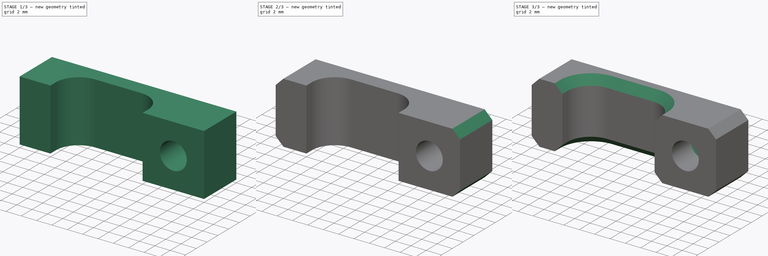
[diagram: build sequence overview — one tinted view per stage of 3, left to right]
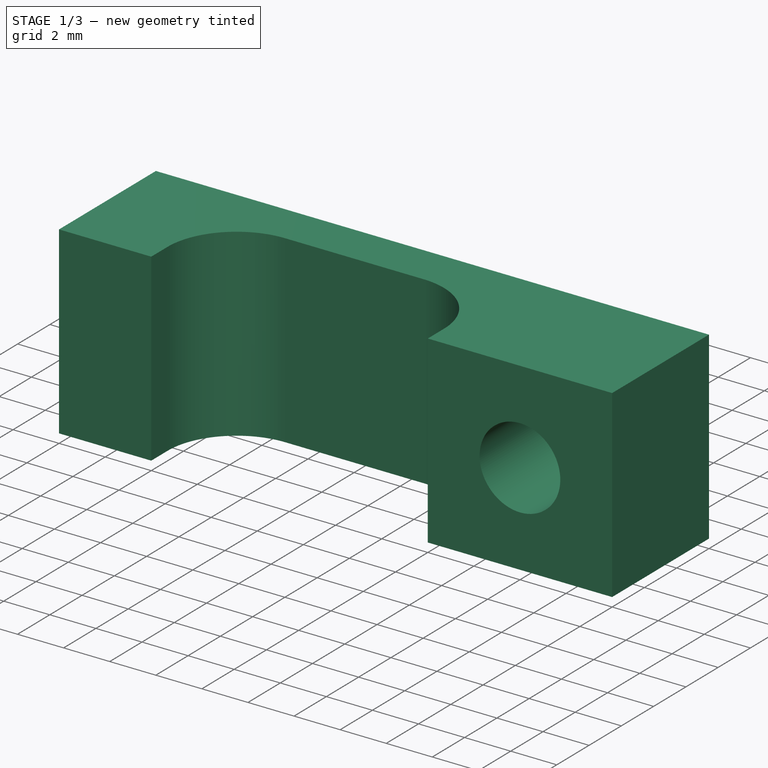
[diagram: stage 1 of 3 — iso view after this stage's code; geometry added in this stage tinted green]
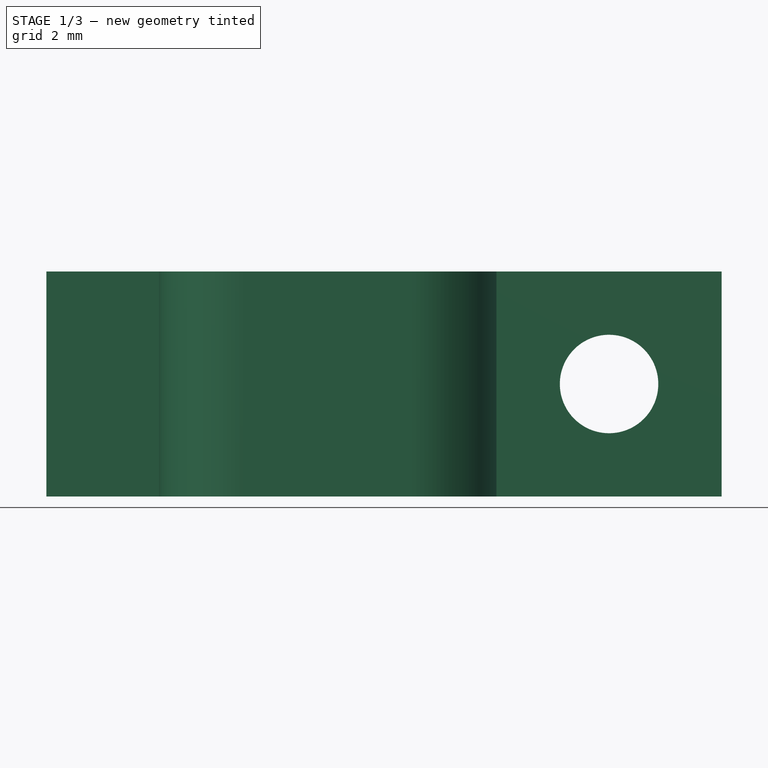
[diagram: stage 1 of 3 — front view after this stage's code; geometry added in this stage tinted green]
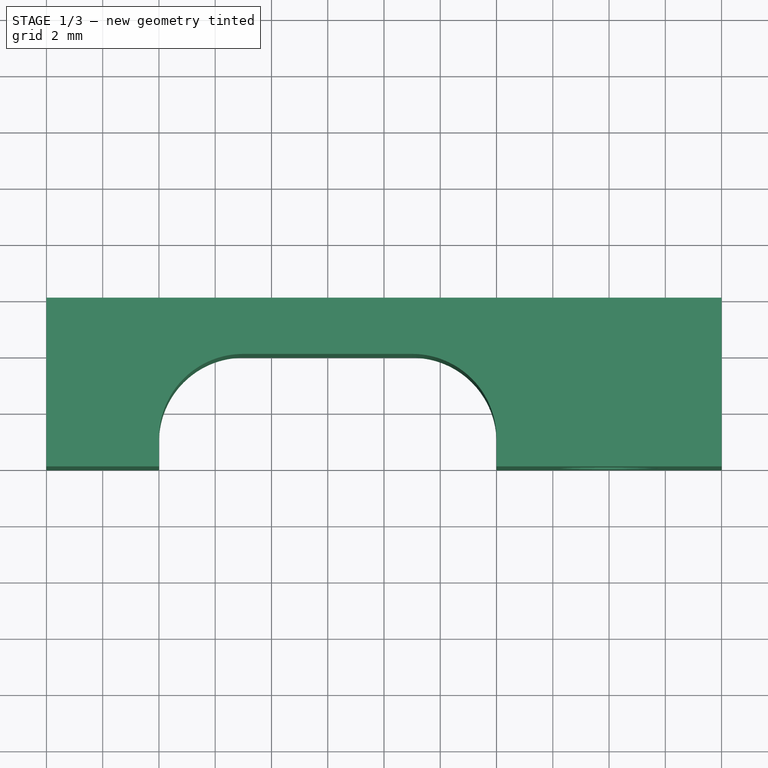
[diagram: stage 1 of 3 — top view after this stage's code; geometry added in this stage tinted green]
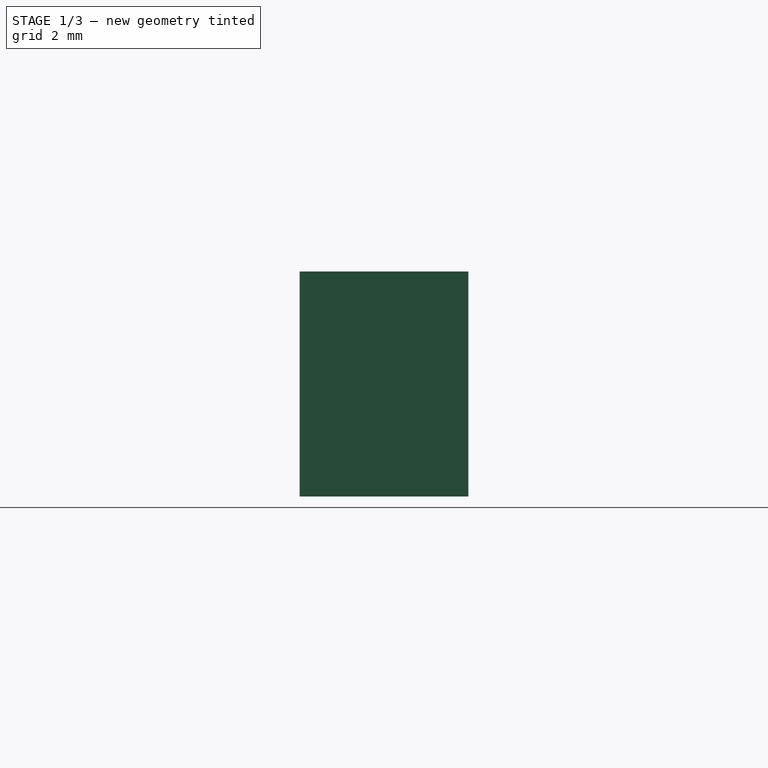
[diagram: stage 1 of 3 — right view after this stage's code; geometry added in this stage tinted green]
FCSTD DOCUMENT  (FreeCAD 0.19R24276 (Git))
Label: peek-cable-clamp
License: All rights reserved
LicenseURL: http://en.wikipedia.org/wiki/All_rights_reserved
objects: Sketcher::SketchObject×3, PartDesign::Pocket×2, PartDesign::Chamfer×2, PartDesign::Plane×2, PartDesign::Pad×1, PartDesign::Body×1
note: 16 computed .brp shape members not serialized (recipe doc carries the construction recipe); baked Part::Feature solids carry a one-line shape summary decoded from their .brp

FEATURE [Sketcher::SketchObject] Sketch
  FullyConstrained = true
  MapMode = 5
  Support = -> [XY_Plane]
  sketch-geometry (14):
    g0: LineSegment StartX=-16 StartY=0 StartZ=0 EndX=-20 EndY=0 EndZ=0
    g1: LineSegment StartX=-20 StartY=0 StartZ=0 EndX=-20 EndY=6 EndZ=0
    g2: LineSegment StartX=-20 StartY=6 StartZ=0 EndX=4 EndY=6 EndZ=0
    g3: LineSegment StartX=4 StartY=6 StartZ=0 EndX=4 EndY=0 EndZ=0
    g4: LineSegment StartX=-4 StartY=0 StartZ=0 EndX=4 EndY=0 EndZ=0
    g5: LineSegment StartX=-16 StartY=0 StartZ=0 EndX=-16 EndY=6 EndZ=0
    g6: LineSegment StartX=-4 StartY=0 StartZ=0 EndX=-4 EndY=6 EndZ=0
    g7: LineSegment StartX=-16 StartY=0 StartZ=0 EndX=-16 EndY=1 EndZ=0
    g8: LineSegment StartX=-4 StartY=0 StartZ=0 EndX=-4 EndY=1 EndZ=0
    g9: LineSegment StartX=-13 StartY=4 StartZ=0 EndX=-7 EndY=4 EndZ=0
    g10: ArcOfCircle CenterX=-13 CenterY=1 CenterZ=0 NormalX=0 NormalY=0 NormalZ=1 AngleXU=0 Radius=3 StartAngle=1.5708 EndAngle=3.14159
    g11: GeomPoint X=-16 Y=4 Z=0
    g12: ArcOfCircle CenterX=-7 CenterY=1 CenterZ=0 NormalX=0 NormalY=0 NormalZ=1 AngleXU=0 Radius=3 StartAngle=0 EndAngle=1.5708
    g13: GeomPoint X=-4 Y=4 Z=0
  constraints (38):
    c: PointOnObject(g4,g-1)
    c: PointOnObject(g0,g-1)
    c: Coincident(g0,g1)
    c: Vertical(g1)
    c: Coincident(g1,g2)
    c: Coincident(g2,g3)
    c: Vertical(g3)
    c: Horizontal(g0)
    c: DistanceY(g1,g1) = 6
    c: Coincident(g3,g4)
    c: Horizontal(g2)
    c: Symmetric(g4,g3,g-2)
    c: DistanceX(g4,g4) = 8
    c: DistanceX(g1,g-1) = 20
    c: DistanceX(g0,g4) = 12
    c: DistanceX(g0,g0) = 4
    c: PointOnObject(g5,g2)
    c: Vertical(g5)
    c: Coincident(g6,g4)
    c: PointOnObject(g6,g2)
    c: Vertical(g6)
    c: Coincident(g5,g0) = 1.5708
    c: Coincident(g7,g0)
    c: PointOnObject(g11,g5)
    c: Coincident(g8,g4)
    c: PointOnObject(g13,g6)
    c: Vertical(g8)
    c: DistanceY(g7,g11) = 4
    c: Horizontal(g11,g13)
    c: PointOnObject(g11,g7)
    c: PointOnObject(g11,g9)
    c: Tangent(g7,g10) = 1.5708
    c: Tangent(g9,g10) = 1.5708
    c: PointOnObject(g13,g9)
    c: Tangent(g9,g12) = 1.5708
    c: Tangent(g8,g12) = -1.5708
    c: Equal(g10,g12)
    c: Radius(g10) = 3
FEATURE [PartDesign::Pad] Pad  label="Base Feature"
  AllowMultiFace = false
  Direction = (1,1,1)
  Length = 4
  Length2 = 4
  Profile = -> Sketch
  Type = 4
FEATURE [Sketcher::SketchObject] Sketch001
  FullyConstrained = true
  MapMode = 5
  Placement = pos=(0,0,0) rot=(1,0,0;1.5708rad)
  Support = -> [XZ_Plane]
  sketch-geometry (1):
    g0: Circle CenterX=0 CenterY=0 CenterZ=0 NormalX=0 NormalY=0 NormalZ=1 AngleXU=0 Radius=1.75
  constraints (2):
    c: Coincident(g0,g-1)
    c: Diameter(g0) = 3.5
FEATURE [PartDesign::Pocket] Pocket  label="M3 Through Hole"
  AllowMultiFace = false
  BaseFeature = -> Pad
  Length = 5
  Length2 = 100
  Profile = -> Sketch001
  Type = 1
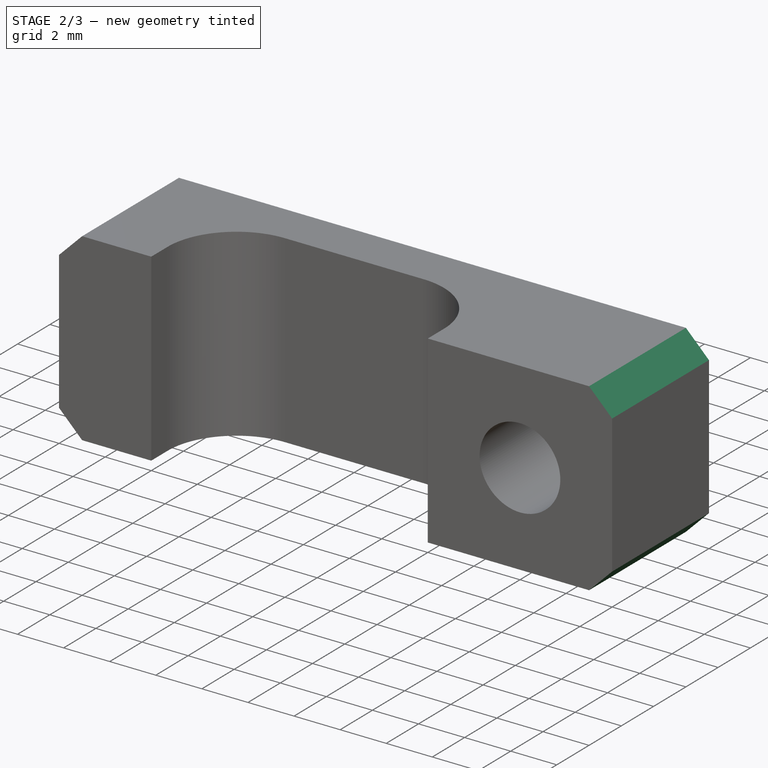
[diagram: stage 2 of 3 — iso view after this stage's code; geometry added in this stage tinted green]
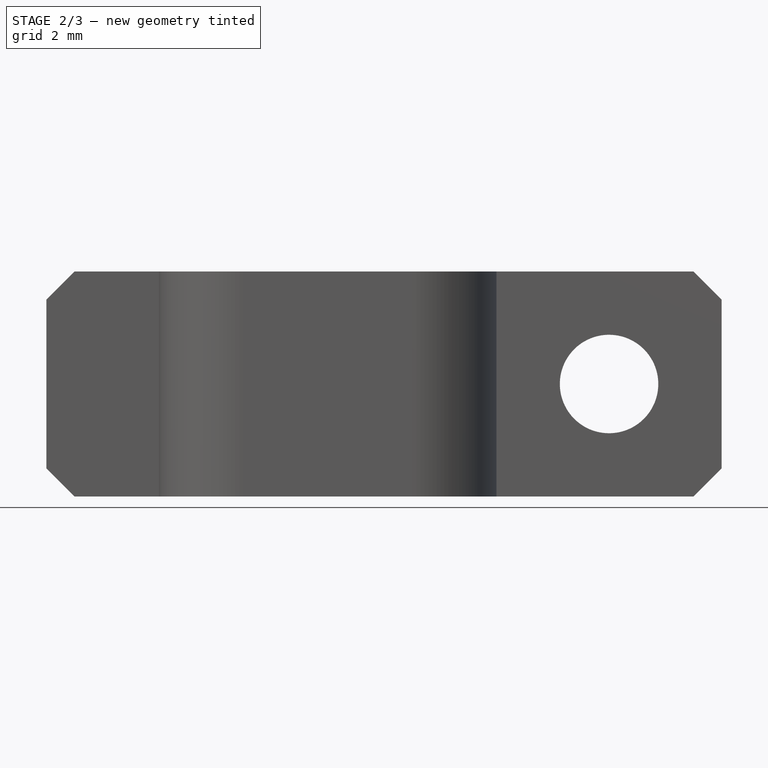
[diagram: stage 2 of 3 — front view after this stage's code; geometry added in this stage tinted green]
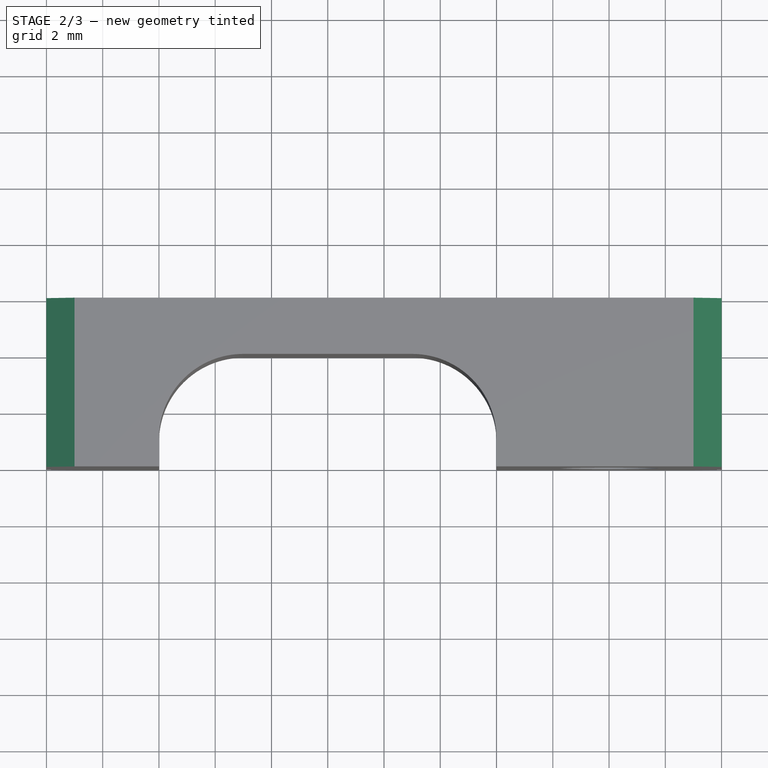
[diagram: stage 2 of 3 — top view after this stage's code; geometry added in this stage tinted green]
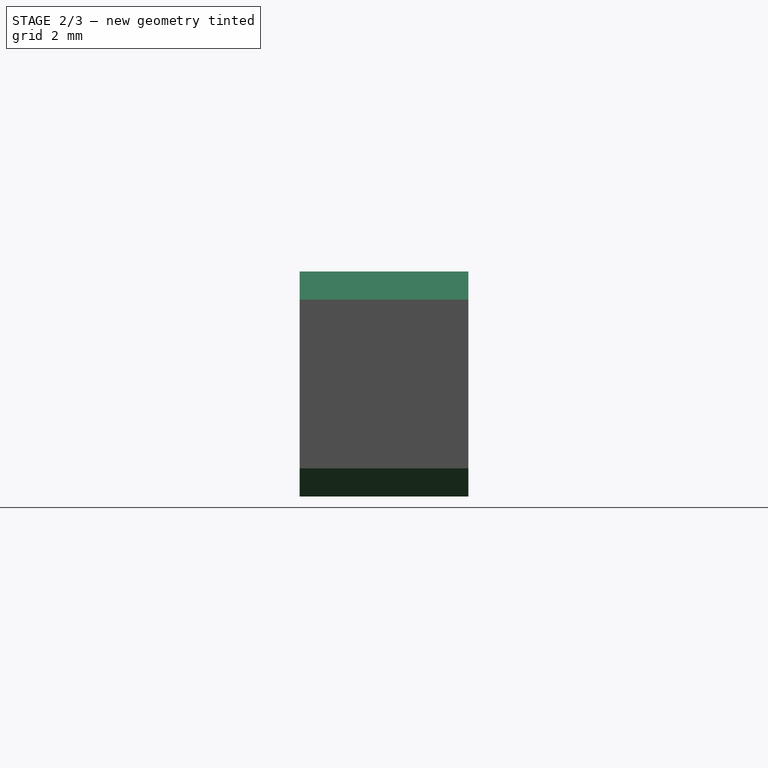
[diagram: stage 2 of 3 — right view after this stage's code; geometry added in this stage tinted green]
FEATURE [PartDesign::Chamfer] Chamfer
  Angle = 45
  Base = -> Pocket [Edge19,Edge21,Edge14,Edge12]
  BaseFeature = -> Pocket
  ChamferType = 0
  FlipDirection = false
  Size = 1
  Size2 = 1
  SupportTransform = false
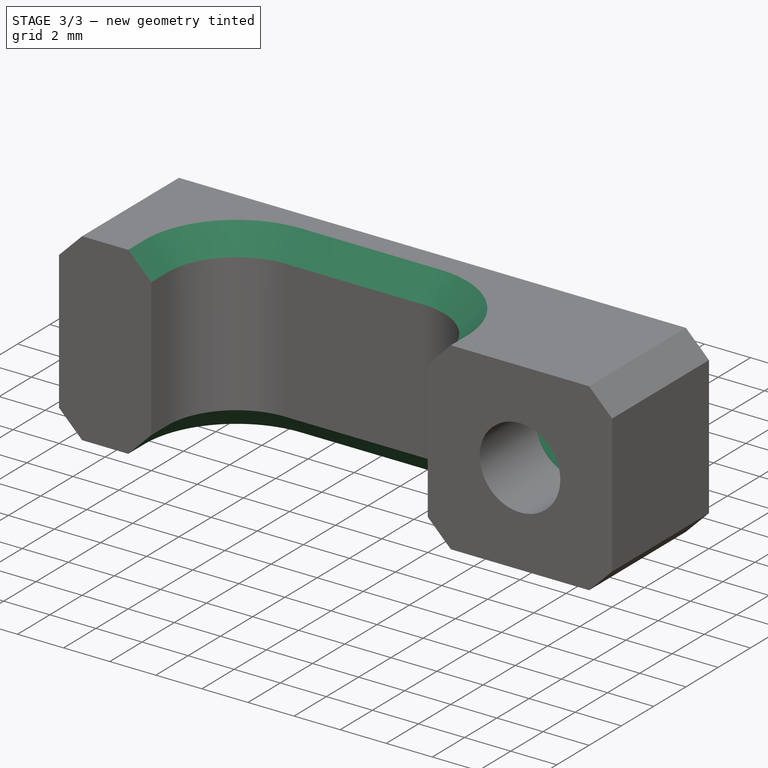
[diagram: stage 3 of 3 — iso view after this stage's code; geometry added in this stage tinted green]
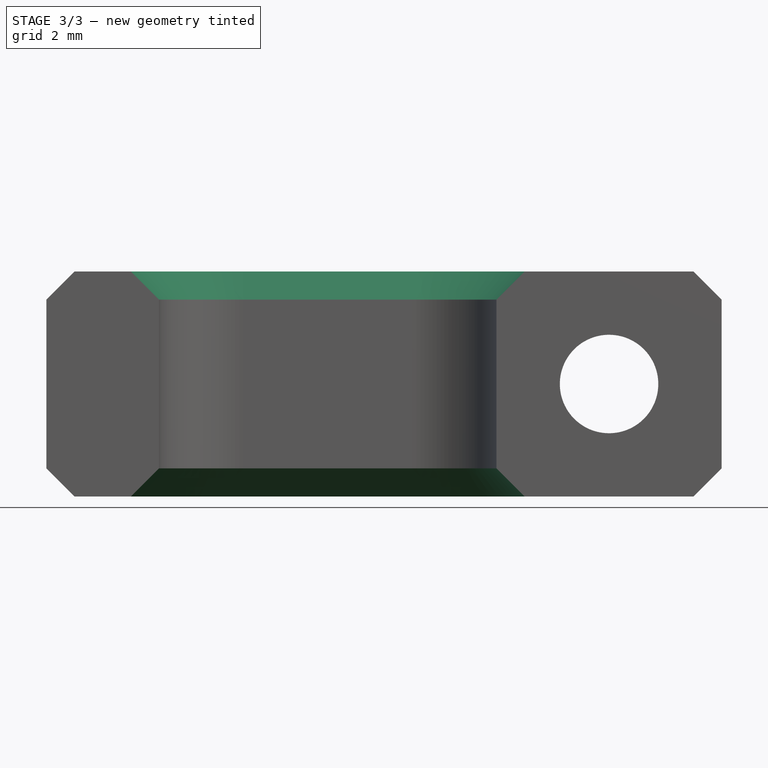
[diagram: stage 3 of 3 — front view after this stage's code; geometry added in this stage tinted green]
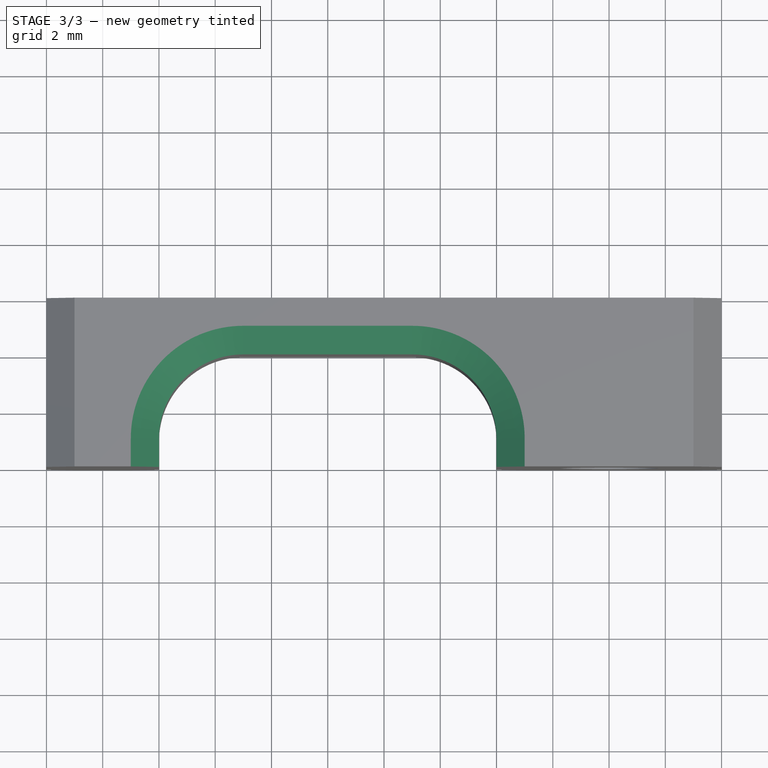
[diagram: stage 3 of 3 — top view after this stage's code; geometry added in this stage tinted green]
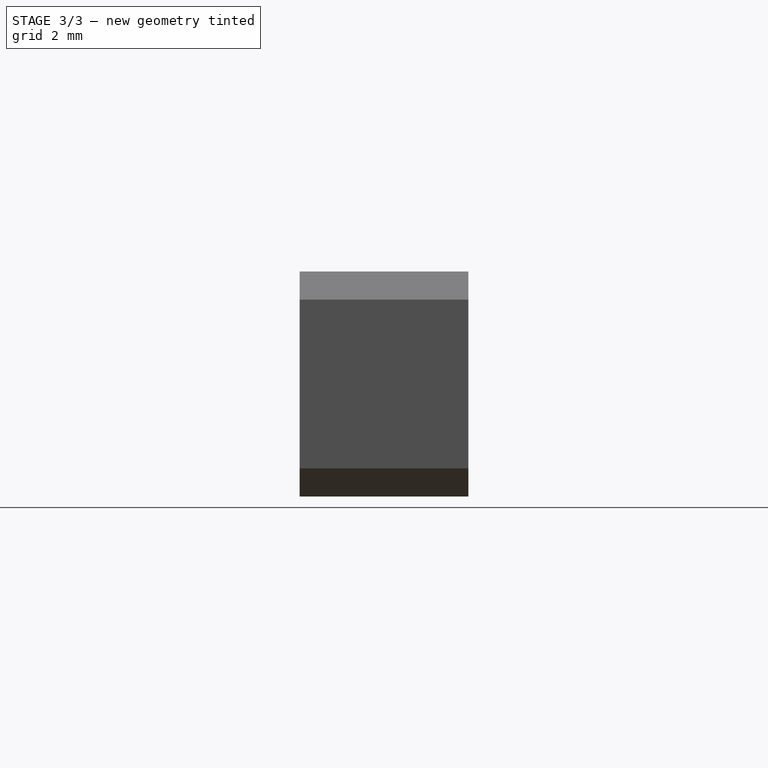
[diagram: stage 3 of 3 — right view after this stage's code; geometry added in this stage tinted green]
FEATURE [PartDesign::Plane] DatumPlane  label="PrintPlane"
  Length = 60
  MapMode = 5
  Placement = pos=(0,0,4) rot=(0,0,1;0rad)
  ResizeMode = 0
  Support = -> [Chamfer]
  Width = 60
FEATURE [PartDesign::Plane] DatumPlane002
  Length = 60
  MapMode = 5
  Placement = pos=(0,6,0) rot=(0,0.707107,0.707107;3.14159rad)
  ResizeMode = 0
  Support = -> [Pocket]
  Width = 60
FEATURE [Sketcher::SketchObject] Sketch002
  FullyConstrained = true
  MapMode = 5
  Placement = pos=(0,6,0) rot=(0,0.707107,0.707107;3.14159rad)
  Support = -> [DatumPlane002]
  sketch-geometry (9):
    g0: LineSegment StartX=3.23316 StartY=0 StartZ=0 EndX=1.61658 EndY=2.8 EndZ=0
    g1: LineSegment StartX=1.61658 StartY=2.8 StartZ=0 EndX=-1.61658 EndY=2.8 EndZ=0
    g2: LineSegment StartX=-1.61658 StartY=2.8 StartZ=0 EndX=-3.23316 EndY=3.11844e-11 EndZ=0
    g3: LineSegment StartX=-3.23316 StartY=3.11844e-11 StartZ=0 EndX=-1.61658 EndY=-2.8 EndZ=0
    g4: LineSegment StartX=-1.61658 StartY=-2.8 StartZ=0 EndX=1.61658 EndY=-2.8 EndZ=0
    g5: LineSegment StartX=1.61658 StartY=-2.8 StartZ=0 EndX=3.23316 EndY=0 EndZ=0
    g6: Circle CenterX=0 CenterY=0 CenterZ=0 NormalX=0 NormalY=0 NormalZ=1 AngleXU=0 Radius=3.23316
    g7: GeomPoint X=-2.42487 Y=1.4 Z=0
    g8: GeomPoint X=2.42487 Y=-1.4 Z=0
  constraints (19):
    c: Coincident(g0,g1)
    c: Coincident(g1,g2)
    c: Coincident(g2,g3)
    c: Coincident(g3,g4)
    c: Coincident(g4,g5)
    c: Coincident(g5,g0)
    c: Equal(g0, g1-g5) x5
    c: PointOnObject(g0,g6)
    c: PointOnObject(g1,g6)
    c: PointOnObject(g2,g6)
    c: PointOnObject(g3,g6)
    c: PointOnObject(g4,g6)
    c: PointOnObject(g5,g6)
    c: Coincident(g6,g-1)
    c: PointOnObject(g5,g-1)
    c: Diameter(g6) = 6.46632
    c: Symmetric(g5,g5,g8)
    c: Symmetric(g2,g2,g7)
    c: Distance(g7,g8) = 5.6
FEATURE [PartDesign::Pocket] Pocket001  label="Hex Nut Pocket"
  BaseFeature = -> Chamfer
  Length = 2.5
  Length2 = 100
  Profile = -> Sketch002
  Type = 0
FEATURE [PartDesign::Chamfer] Chamfer001
  Angle = 45
  Base = -> Pocket001 [Edge45,Edge10]
  BaseFeature = -> Pocket001
  ChamferType = 0
  FlipDirection = false
  Size = 1
  Size2 = 1
  SupportTransform = false
FEATURE [PartDesign::Body] Body
  Group = -> [Sketch,Pad,Sketch001,Pocket,Chamfer,DatumPlane,DatumPlane002,Sketch002,Pocket001,Chamfer001]
  Origin = -> Origin
  Tip = -> Chamfer001
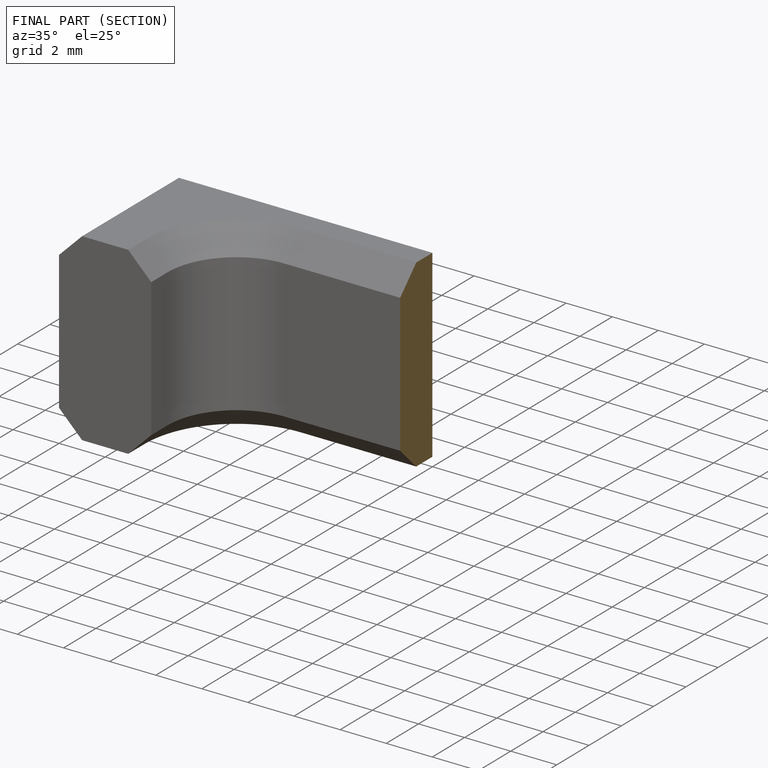
[diagram: finished part — half-section view (interior)]
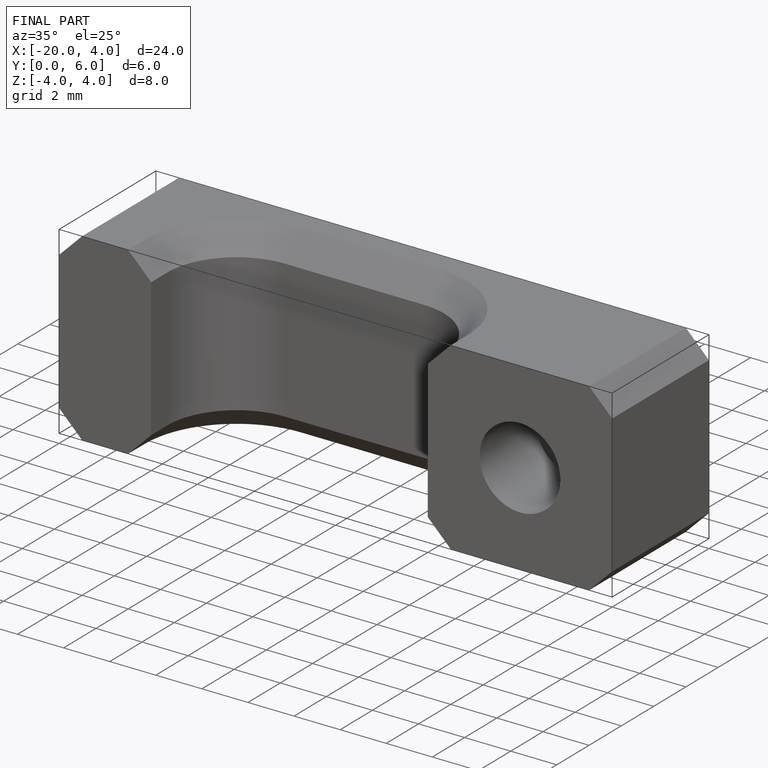
[diagram: finished part — iso view with bounding-box wireframe]
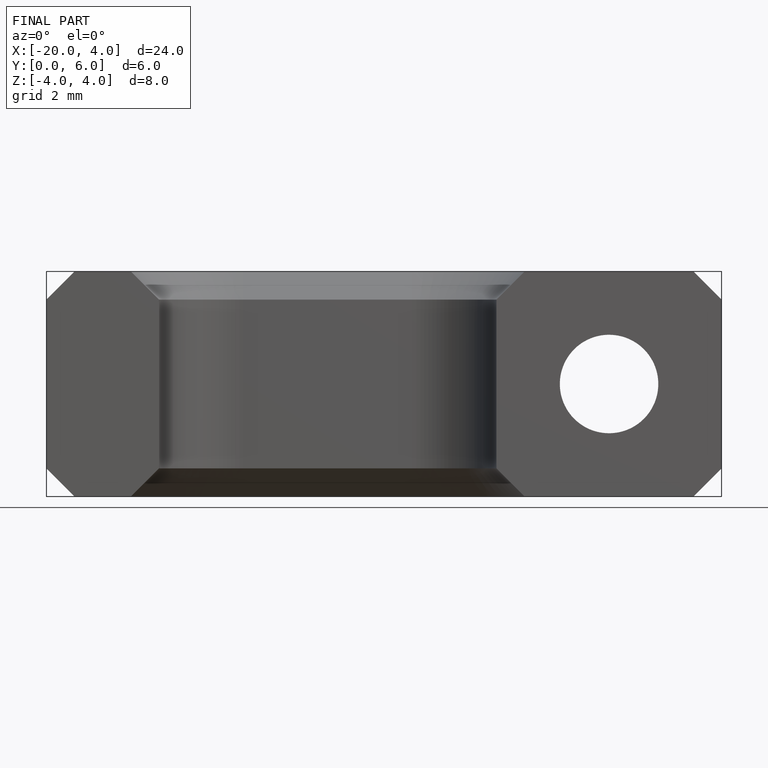
[diagram: finished part — front view with bounding-box wireframe]
